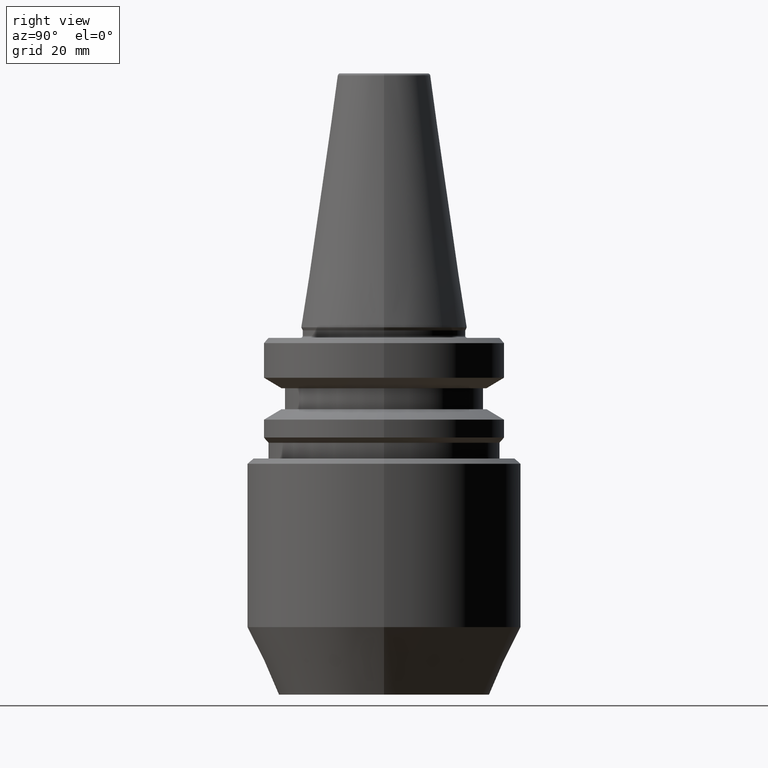
[diagram: clean part render]
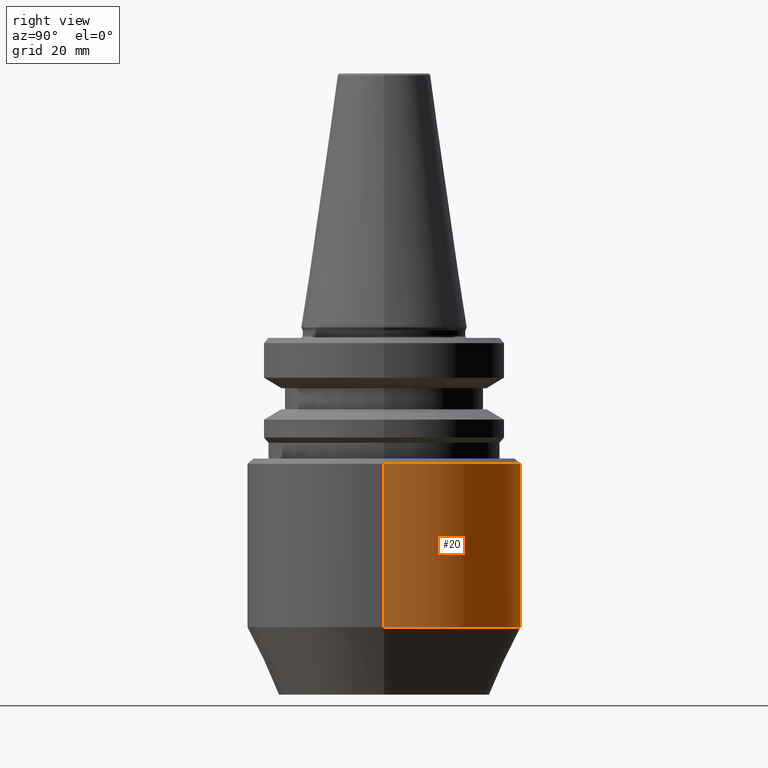
[diagram: same view with one face highlighted and labeled with its STEP entity id]
A machine part, right view. The second image highlights one B-rep face of the part: STEP entity #20.
In plain terms, the highlighted cylindrical surface (partial cylindrical patch) has radius 26 mm, axis along (-0, -0, 1).
Its self-contained STEP definition (entity closure, byte-faithful):
#15 = CARTESIAN_POINT ( 'NONE',  ( 25.99999999999791500, 0.0000000000000000000, -25.99999999999991100 ) ) ;
#20 = ADVANCED_FACE ( 'NONE', ( #1029 ), #202, .T. ) ;
#42 = VERTEX_POINT ( 'NONE', #846 ) ;
#43 = EDGE_CURVE ( 'NONE', #589, #42, #788, .T. ) ;
#80 = CARTESIAN_POINT ( 'NONE',  ( 25.99999999999791500, 0.0000000000000000000, 95.66143460902885900 ) ) ;
#110 = VERTEX_POINT ( 'NONE', #780 ) ;
#132 = VERTEX_POINT ( 'NONE', #843 ) ;
#145 = CIRCLE ( 'NONE', #559, 25.99999999999791500 ) ;
#190 = CARTESIAN_POINT ( 'NONE',  ( 0.0000000000000000000, 0.0000000000000000000, -57.13295847694312400 ) ) ;
#202 = CYLINDRICAL_SURFACE ( 'NONE', #422, 25.99999999999791500 ) ;
#208 = EDGE_LOOP ( 'NONE', ( #865, #709, #996, #484 ) ) ;
#220 = VECTOR ( 'NONE', #958, 1000.000000000000000 ) ;
#276 = VECTOR ( 'NONE', #807, 1000.000000000000000 ) ;
#419 = EDGE_CURVE ( 'NONE', #132, #589, #911, .T. ) ;
#422 = AXIS2_PLACEMENT_3D ( 'NONE', #906, #954, #465 ) ;
#465 = DIRECTION ( 'NONE',  ( 1.000000000000000000, 0.0000000000000000000, 0.0000000000000000000 ) ) ;
#482 = DIRECTION ( 'NONE',  ( -0.0000000000000000000, -0.0000000000000000000, 1.000000000000000000 ) ) ;
#484 = ORIENTED_EDGE ( 'NONE', *, *, #419, .F. ) ;
#492 = EDGE_CURVE ( 'NONE', #110, #42, #853, .T. ) ;
#517 = AXIS2_PLACEMENT_3D ( 'NONE', #1005, #482, #660 ) ;
#543 = CARTESIAN_POINT ( 'NONE',  ( -25.99999999999791500, 3.184081677782863000E-015, 95.66143460902885900 ) ) ;
#559 = AXIS2_PLACEMENT_3D ( 'NONE', #190, #666, #743 ) ;
#589 = VERTEX_POINT ( 'NONE', #15 ) ;
#590 = EDGE_CURVE ( 'NONE', #132, #110, #145, .T. ) ;
#660 = DIRECTION ( 'NONE',  ( 1.000000000000000000, 0.0000000000000000000, 0.0000000000000000000 ) ) ;
#666 = DIRECTION ( 'NONE',  ( -0.0000000000000000000, -0.0000000000000000000, 1.000000000000000000 ) ) ;
#709 = ORIENTED_EDGE ( 'NONE', *, *, #492, .T. ) ;
#743 = DIRECTION ( 'NONE',  ( 1.000000000000000000, 0.0000000000000000000, 0.0000000000000000000 ) ) ;
#780 = CARTESIAN_POINT ( 'NONE',  ( -25.99999999999791500, 3.184081677782863000E-015, -57.13295847694312400 ) ) ;
#788 = CIRCLE ( 'NONE', #517, 25.99999999999791500 ) ;
#807 = DIRECTION ( 'NONE',  ( -0.0000000000000000000, -0.0000000000000000000, 1.000000000000000000 ) ) ;
#843 = CARTESIAN_POINT ( 'NONE',  ( 25.99999999999791500, 0.0000000000000000000, -57.13295847694312400 ) ) ;
#846 = CARTESIAN_POINT ( 'NONE',  ( -25.99999999999791500, 3.184081677782863000E-015, -25.99999999999991100 ) ) ;
#853 = LINE ( 'NONE', #543, #220 ) ;
#865 = ORIENTED_EDGE ( 'NONE', *, *, #590, .T. ) ;
#906 = CARTESIAN_POINT ( 'NONE',  ( 0.0000000000000000000, 0.0000000000000000000, 95.66143460902885900 ) ) ;
#911 = LINE ( 'NONE', #80, #276 ) ;
#954 = DIRECTION ( 'NONE',  ( -0.0000000000000000000, -0.0000000000000000000, 1.000000000000000000 ) ) ;
#958 = DIRECTION ( 'NONE',  ( -0.0000000000000000000, -0.0000000000000000000, 1.000000000000000000 ) ) ;
#996 = ORIENTED_EDGE ( 'NONE', *, *, #43, .F. ) ;
#1005 = CARTESIAN_POINT ( 'NONE',  ( 0.0000000000000000000, 0.0000000000000000000, -25.99999999999991100 ) ) ;
#1029 = FACE_OUTER_BOUND ( 'NONE', #208, .T. ) ;